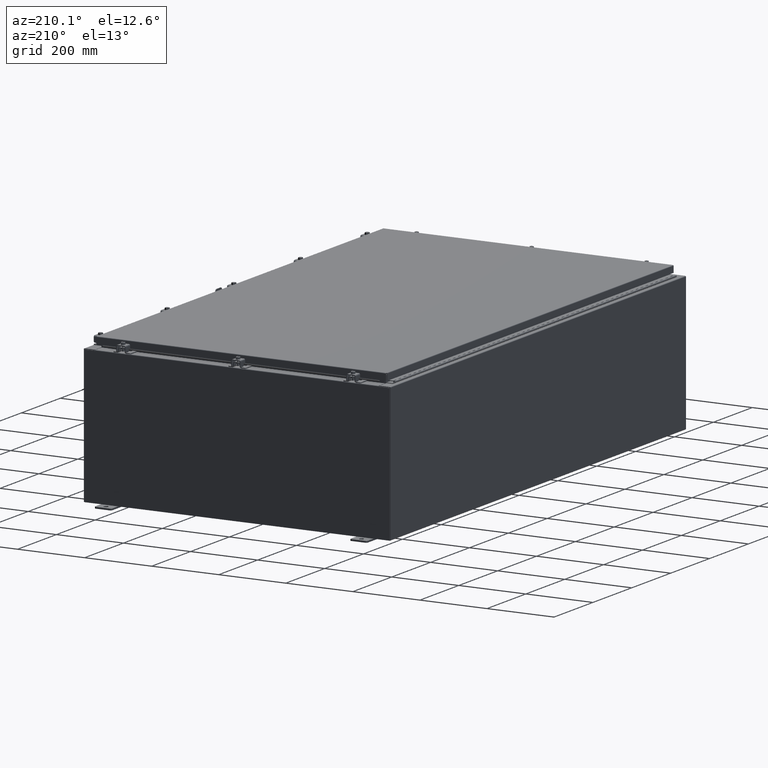
[diagram: clean part render]
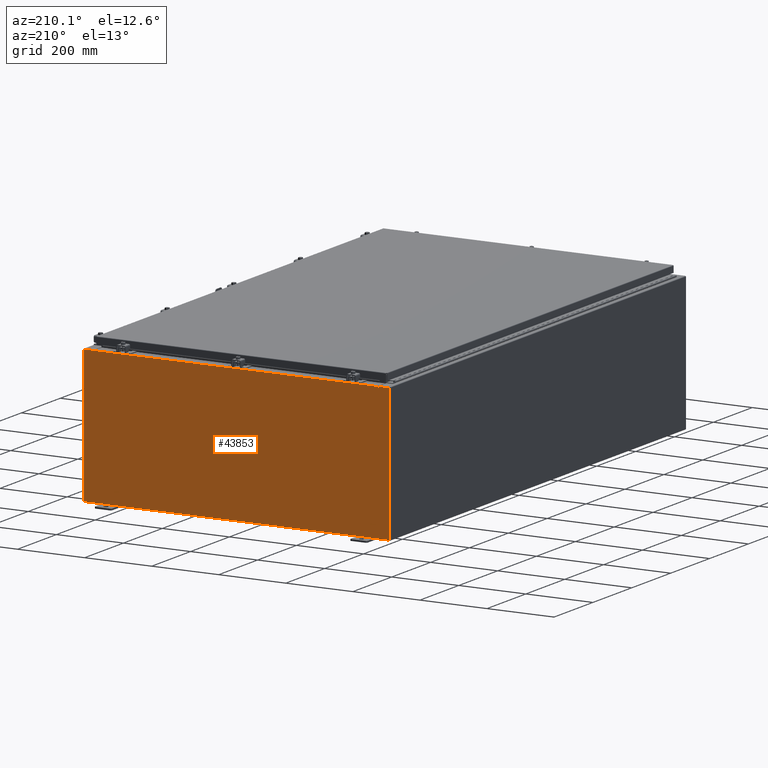
[diagram: same view with one face highlighted and labeled with its STEP entity id]
A machine part, auxiliary view. The second image highlights one B-rep face of the part: STEP entity #43853.
In plain terms, the highlighted planar face has unit normal (0, -1, 0).
Its self-contained STEP definition (entity closure, byte-faithful):
#85 = CARTESIAN_POINT ( 'NONE',  ( -17.92530000000000000, 0.0000000000000000000, 7.925300000000001800 ) ) ;
#1114 = VERTEX_POINT ( 'NONE', #60617 ) ;
#3251 = CARTESIAN_POINT ( 'NONE',  ( 16.63720000000000400, 0.0000000000000000000, 7.874950000000001900 ) ) ;
#3270 = VERTEX_POINT ( 'NONE', #3251 ) ;
#3477 = CARTESIAN_POINT ( 'NONE',  ( 16.63720000000000400, 0.0000000000000000000, 7.912300000000001900 ) ) ;
#4042 = VECTOR ( 'NONE', #39137, 39.37007874015748100 ) ;
#4183 = CARTESIAN_POINT ( 'NONE',  ( 17.92530000000000000, 0.0000000000000000000, -7.925299999999997300 ) ) ;
#4563 = DIRECTION ( 'NONE',  ( 1.000000000000000000, 0.0000000000000000000, -6.096072018129154100E-017 ) ) ;
#4993 = ORIENTED_EDGE ( 'NONE', *, *, #36308, .T. ) ;
#5052 = VECTOR ( 'NONE', #31466, 39.37007874015748100 ) ;
#5403 = VERTEX_POINT ( 'NONE', #3477 ) ;
#6659 = VERTEX_POINT ( 'NONE', #25048 ) ;
#7801 = LINE ( 'NONE', #44981, #57988 ) ;
#7838 = CARTESIAN_POINT ( 'NONE',  ( 17.92530000000000000, 0.0000000000000000000, 7.925300000000000000 ) ) ;
#8097 = VERTEX_POINT ( 'NONE', #54088 ) ;
#8978 = CARTESIAN_POINT ( 'NONE',  ( -16.63720000000000400, -0.0000000000000000000, 7.874950000000001900 ) ) ;
#9209 = EDGE_CURVE ( 'NONE', #1114, #14915, #35717, .T. ) ;
#9588 = ORIENTED_EDGE ( 'NONE', *, *, #29700, .T. ) ;
#9925 = CIRCLE ( 'NONE', #17203, 0.01867499999999949400 ) ;
#9995 = CARTESIAN_POINT ( 'NONE',  ( -17.92530000000000000, 0.0000000000000000000, 7.925300000000001800 ) ) ;
#10361 = CARTESIAN_POINT ( 'NONE',  ( 16.67455000000000000, 0.0000000000000000000, 7.874950000000001900 ) ) ;
#10452 = DIRECTION ( 'NONE',  ( 0.0000000000000000000, -1.000000000000000000, 0.0000000000000000000 ) ) ;
#11524 = ORIENTED_EDGE ( 'NONE', *, *, #30812, .T. ) ;
#11955 = EDGE_CURVE ( 'NONE', #22015, #39347, #7801, .T. ) ;
#12664 = DIRECTION ( 'NONE',  ( 0.0000000000000000000, 0.0000000000000000000, 1.000000000000000000 ) ) ;
#13236 = CARTESIAN_POINT ( 'NONE',  ( -16.65587500000000200, 0.0000000000000000000, 7.874950000000001900 ) ) ;
#13521 = DIRECTION ( 'NONE',  ( -0.0000000000000000000, 1.000000000000000000, -0.0000000000000000000 ) ) ;
#14537 = DIRECTION ( 'NONE',  ( 0.0000000000000000000, 0.0000000000000000000, 1.000000000000000000 ) ) ;
#14915 = VERTEX_POINT ( 'NONE', #57172 ) ;
#15456 = LINE ( 'NONE', #9995, #4042 ) ;
#15721 = ORIENTED_EDGE ( 'NONE', *, *, #51676, .F. ) ;
#16101 = VECTOR ( 'NONE', #18111, 39.37007874015748100 ) ;
#17203 = AXIS2_PLACEMENT_3D ( 'NONE', #13236, #47235, #18145 ) ;
#18067 = ORIENTED_EDGE ( 'NONE', *, *, #42979, .F. ) ;
#18111 = DIRECTION ( 'NONE',  ( 1.000000000000000000, 0.0000000000000000000, 0.0000000000000000000 ) ) ;
#18145 = DIRECTION ( 'NONE',  ( 0.0000000000000000000, 0.0000000000000000000, -1.000000000000000000 ) ) ;
#18571 = ORIENTED_EDGE ( 'NONE', *, *, #44764, .F. ) ;
#19012 = CARTESIAN_POINT ( 'NONE',  ( -17.92530000000000000, 0.0000000000000000000, 7.925300000000001800 ) ) ;
#20640 = EDGE_CURVE ( 'NONE', #44828, #8097, #55469, .T. ) ;
#21231 = VECTOR ( 'NONE', #24226, 39.37007874015748100 ) ;
#21543 = LINE ( 'NONE', #36921, #32920 ) ;
#22015 = VERTEX_POINT ( 'NONE', #24967 ) ;
#22789 = VECTOR ( 'NONE', #14537, 39.37007874015748100 ) ;
#24226 = DIRECTION ( 'NONE',  ( -8.681145560800387200E-014, 0.0000000000000000000, -1.000000000000000000 ) ) ;
#24306 = CARTESIAN_POINT ( 'NONE',  ( -17.92530000000000000, 0.0000000000000000000, -7.925299999999997300 ) ) ;
#24967 = CARTESIAN_POINT ( 'NONE',  ( -16.63720000000000400, -2.356218894535426900E-015, 7.912300000000008100 ) ) ;
#25048 = CARTESIAN_POINT ( 'NONE',  ( 17.92530000000000000, 0.0000000000000000000, 7.925300000000000000 ) ) ;
#26171 = AXIS2_PLACEMENT_3D ( 'NONE', #42688, #13521, #47505 ) ;
#29042 = LINE ( 'NONE', #47208, #16101 ) ;
#29700 = EDGE_CURVE ( 'NONE', #8097, #61540, #15456, .T. ) ;
#30384 = ORIENTED_EDGE ( 'NONE', *, *, #9209, .F. ) ;
#30812 = EDGE_CURVE ( 'NONE', #6659, #44828, #44945, .T. ) ;
#30908 = LINE ( 'NONE', #60576, #5052 ) ;
#31466 = DIRECTION ( 'NONE',  ( 1.000000000000000000, 0.0000000000000000000, -6.096072018129154100E-017 ) ) ;
#32920 = VECTOR ( 'NONE', #12664, 39.37007874015748100 ) ;
#33546 = VECTOR ( 'NONE', #56489, 39.37007874015748100 ) ;
#34142 = LINE ( 'NONE', #38673, #21231 ) ;
#34906 = EDGE_LOOP ( 'NONE', ( #30384, #55643, #44982, #38623, #18067, #18571, #15721, #4993, #11524, #43598, #9588, #37838 ) ) ;
#35717 = LINE ( 'NONE', #58104, #22789 ) ;
#36308 = EDGE_CURVE ( 'NONE', #52679, #6659, #61263, .T. ) ;
#36921 = CARTESIAN_POINT ( 'NONE',  ( 16.63720000000000400, 0.0000000000000000000, 0.0000000000000000000 ) ) ;
#37838 = ORIENTED_EDGE ( 'NONE', *, *, #47774, .T. ) ;
#38623 = ORIENTED_EDGE ( 'NONE', *, *, #43704, .T. ) ;
#38673 = CARTESIAN_POINT ( 'NONE',  ( 16.67454999999931800, -0.0000000000000000000, -1.447541957108381700E-012 ) ) ;
#39137 = DIRECTION ( 'NONE',  ( -0.0000000000000000000, -0.0000000000000000000, 1.000000000000000000 ) ) ;
#39347 = VERTEX_POINT ( 'NONE', #8978 ) ;
#39601 = PLANE ( 'NONE',  #47223 ) ;
#42557 = VECTOR ( 'NONE', #48507, 39.37007874015748100 ) ;
#42688 = CARTESIAN_POINT ( 'NONE',  ( 16.65587500000000200, 0.0000000000000000000, 7.874950000000001900 ) ) ;
#42850 = CARTESIAN_POINT ( 'NONE',  ( 16.67455000000000700, 0.0000000000000000000, 7.925300000000000000 ) ) ;
#42979 = EDGE_CURVE ( 'NONE', #3270, #5403, #21543, .T. ) ;
#43475 = CIRCLE ( 'NONE', #26171, 0.01867499999999949400 ) ;
#43598 = ORIENTED_EDGE ( 'NONE', *, *, #20640, .T. ) ;
#43704 = EDGE_CURVE ( 'NONE', #22015, #5403, #29042, .T. ) ;
#43853 = ADVANCED_FACE ( 'NONE', ( #57141 ), #39601, .F. ) ;
#44457 = DIRECTION ( 'NONE',  ( 0.0000000000000000000, -0.0000000000000000000, -1.000000000000000000 ) ) ;
#44764 = EDGE_CURVE ( 'NONE', #62917, #3270, #43475, .T. ) ;
#44828 = VERTEX_POINT ( 'NONE', #4183 ) ;
#44945 = LINE ( 'NONE', #7838, #33546 ) ;
#44981 = CARTESIAN_POINT ( 'NONE',  ( -16.63720000000000400, -0.0000000000000000000, 0.0000000000000000000 ) ) ;
#44982 = ORIENTED_EDGE ( 'NONE', *, *, #11955, .F. ) ;
#45381 = EDGE_CURVE ( 'NONE', #39347, #1114, #9925, .T. ) ;
#47208 = CARTESIAN_POINT ( 'NONE',  ( -16.63720000000000400, -2.356218894535426900E-015, 7.912300000000008100 ) ) ;
#47223 = AXIS2_PLACEMENT_3D ( 'NONE', #58915, #10452, #44457 ) ;
#47235 = DIRECTION ( 'NONE',  ( -0.0000000000000000000, 1.000000000000000000, -0.0000000000000000000 ) ) ;
#47505 = DIRECTION ( 'NONE',  ( 0.0000000000000000000, 0.0000000000000000000, -1.000000000000000000 ) ) ;
#47774 = EDGE_CURVE ( 'NONE', #61540, #14915, #30908, .T. ) ;
#48304 = VECTOR ( 'NONE', #4563, 39.37007874015748100 ) ;
#48507 = DIRECTION ( 'NONE',  ( -1.000000000000000000, -0.0000000000000000000, -0.0000000000000000000 ) ) ;
#51676 = EDGE_CURVE ( 'NONE', #52679, #62917, #34142, .T. ) ;
#52679 = VERTEX_POINT ( 'NONE', #42850 ) ;
#54088 = CARTESIAN_POINT ( 'NONE',  ( -17.92530000000000000, 0.0000000000000000000, -7.925299999999997300 ) ) ;
#55469 = LINE ( 'NONE', #24306, #42557 ) ;
#55643 = ORIENTED_EDGE ( 'NONE', *, *, #45381, .F. ) ;
#56489 = DIRECTION ( 'NONE',  ( 0.0000000000000000000, 0.0000000000000000000, -1.000000000000000000 ) ) ;
#57141 = FACE_OUTER_BOUND ( 'NONE', #34906, .T. ) ;
#57172 = CARTESIAN_POINT ( 'NONE',  ( -16.67455000000000000, 0.0000000000000000000, 7.925300000000001800 ) ) ;
#57988 = VECTOR ( 'NONE', #59640, 39.37007874015748100 ) ;
#58104 = CARTESIAN_POINT ( 'NONE',  ( -16.67455000000000000, -0.0000000000000000000, 0.0000000000000000000 ) ) ;
#58915 = CARTESIAN_POINT ( 'NONE',  ( 0.0000000000000000000, 0.0000000000000000000, 0.0000000000000000000 ) ) ;
#59640 = DIRECTION ( 'NONE',  ( 0.0000000000000000000, 0.0000000000000000000, -1.000000000000000000 ) ) ;
#60576 = CARTESIAN_POINT ( 'NONE',  ( -17.92530000000000000, 0.0000000000000000000, 7.925300000000001800 ) ) ;
#60617 = CARTESIAN_POINT ( 'NONE',  ( -16.67455000000000000, 0.0000000000000000000, 7.874950000000001900 ) ) ;
#61263 = LINE ( 'NONE', #19012, #48304 ) ;
#61540 = VERTEX_POINT ( 'NONE', #85 ) ;
#62917 = VERTEX_POINT ( 'NONE', #10361 ) ;